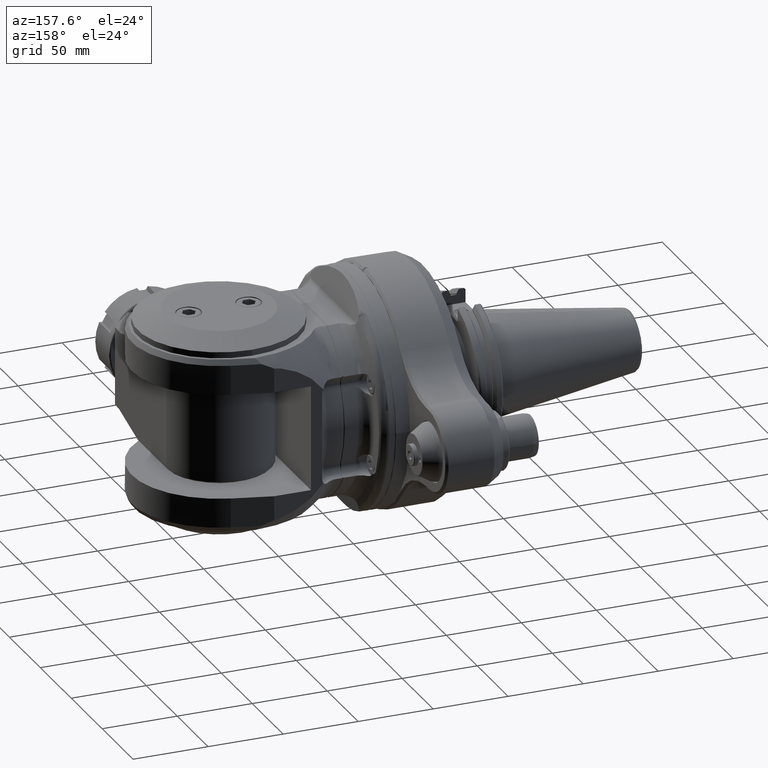
[diagram: clean part render]
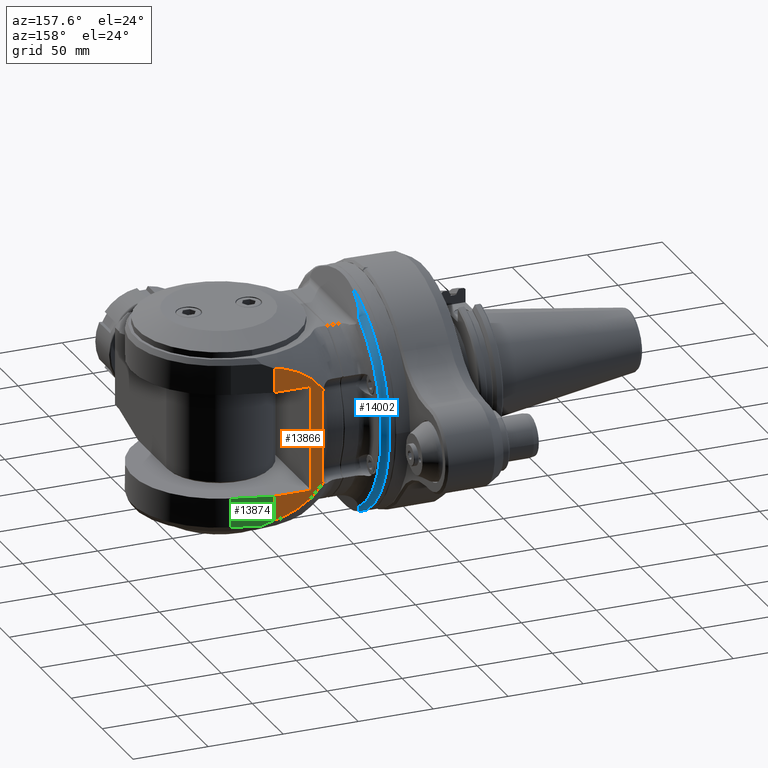
[diagram: same view with three faces highlighted in distinct colors, each labeled with its STEP entity id]
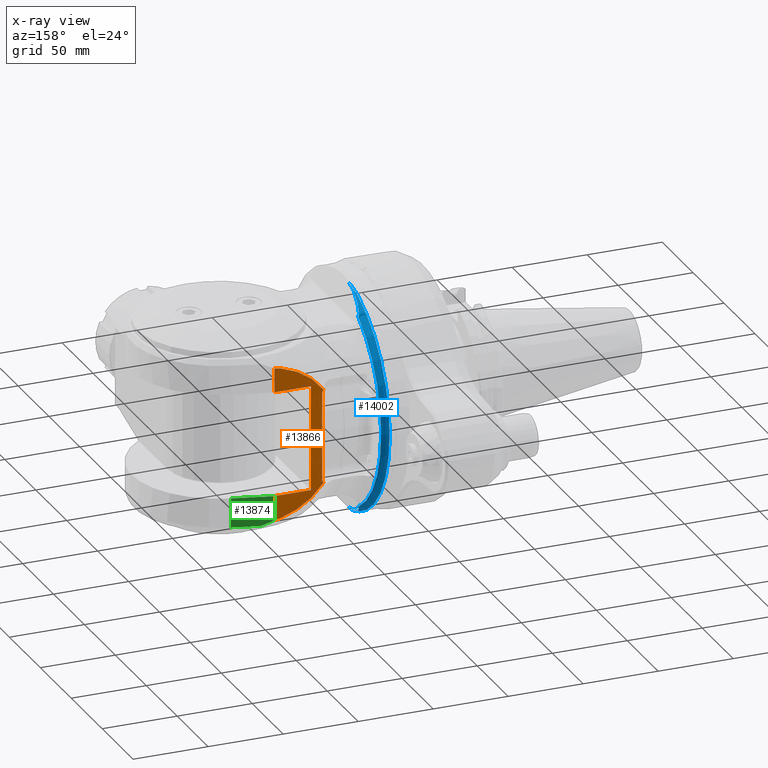
[diagram: x-ray of the same camera — body ghosted, the three highlighted faces saturated]
A machine part, auxiliary view with three faces highlighted in distinct colors.
The next image is the same camera in x-ray (body ghosted, the three faces saturated) — at least one of them is partly hidden behind the body in this view.
Their STEP definitions:

[orange] entity #13866 — the highlighted planar face has unit normal (-0, 1, 0).
#39=(
BOUNDED_CURVE()
B_SPLINE_CURVE(2,(#21549,#21550,#21551),.UNSPECIFIED.,.F.,.F.)
B_SPLINE_CURVE_WITH_KNOTS((3,3),(3.09000583298893,4.48026403852182),
 .UNSPECIFIED.)
CURVE()
GEOMETRIC_REPRESENTATION_ITEM()
RATIONAL_B_SPLINE_CURVE((1.01024396396153,1.00848071304012,1.0030571417366))
REPRESENTATION_ITEM('')
);
#40=(
BOUNDED_CURVE()
B_SPLINE_CURVE(2,(#21574,#21575,#21576),.UNSPECIFIED.,.F.,.F.)
B_SPLINE_CURVE_WITH_KNOTS((3,3),(1.64990286988643,2.81895816475584),
 .UNSPECIFIED.)
CURVE()
GEOMETRIC_REPRESENTATION_ITEM()
RATIONAL_B_SPLINE_CURVE((1.00489119304732,1.00546583130772,1.00439914148235))
REPRESENTATION_ITEM('')
);
#41=(
BOUNDED_CURVE()
B_SPLINE_CURVE(2,(#21580,#21581,#21582),.UNSPECIFIED.,.F.,.F.)
B_SPLINE_CURVE_WITH_KNOTS((3,3),(0.491702736314333,1.58354367920842),
 .UNSPECIFIED.)
CURVE()
GEOMETRIC_REPRESENTATION_ITEM()
RATIONAL_B_SPLINE_CURVE((1.00089229311394,1.00173294473739,1.00190730204875))
REPRESENTATION_ITEM('')
);
#42=(
BOUNDED_CURVE()
B_SPLINE_CURVE(2,(#21588,#21589,#21590),.UNSPECIFIED.,.F.,.F.)
B_SPLINE_CURVE_WITH_KNOTS((3,3),(1.13165271382278,1.54314168648289),
 .UNSPECIFIED.)
CURVE()
GEOMETRIC_REPRESENTATION_ITEM()
RATIONAL_B_SPLINE_CURVE((1.00030080361853,1.00033763730454,1.00036148614669))
REPRESENTATION_ITEM('')
);
#43=(
BOUNDED_CURVE()
B_SPLINE_CURVE(2,(#21600,#21601,#21602),.UNSPECIFIED.,.F.,.F.)
B_SPLINE_CURVE_WITH_KNOTS((3,3),(-1.54314818098456,-1.13165917102349),
 .UNSPECIFIED.)
CURVE()
GEOMETRIC_REPRESENTATION_ITEM()
RATIONAL_B_SPLINE_CURVE((1.00036148763546,1.00033763889358,1.00030080530782))
REPRESENTATION_ITEM('')
);
#44=(
BOUNDED_CURVE()
B_SPLINE_CURVE(2,(#21604,#21605,#21606),.UNSPECIFIED.,.F.,.F.)
B_SPLINE_CURVE_WITH_KNOTS((3,3),(-1.58354367920748,-0.491702736315006),
 .UNSPECIFIED.)
CURVE()
GEOMETRIC_REPRESENTATION_ITEM()
RATIONAL_B_SPLINE_CURVE((1.00190730204873,1.00173294473737,1.00089229311393))
REPRESENTATION_ITEM('')
);
#45=(
BOUNDED_CURVE()
B_SPLINE_CURVE(2,(#21608,#21609,#21610),.UNSPECIFIED.,.F.,.F.)
B_SPLINE_CURVE_WITH_KNOTS((3,3),(-2.81895816475613,-1.64990286988555),
 .UNSPECIFIED.)
CURVE()
GEOMETRIC_REPRESENTATION_ITEM()
RATIONAL_B_SPLINE_CURVE((1.00439914148234,1.00546583130771,1.0048911930473))
REPRESENTATION_ITEM('')
);
#46=(
BOUNDED_CURVE()
B_SPLINE_CURVE(2,(#21612,#21613,#21614),.UNSPECIFIED.,.F.,.F.)
B_SPLINE_CURVE_WITH_KNOTS((3,3),(-4.48026403848997,-3.09000583296642),
 .UNSPECIFIED.)
CURVE()
GEOMETRIC_REPRESENTATION_ITEM()
RATIONAL_B_SPLINE_CURVE((1.0030571417379,1.00848071304122,1.01024396396244))
REPRESENTATION_ITEM('')
);
#408=PLANE('',#14827);
#1307=FACE_OUTER_BOUND('',#2164,.T.);
#2164=EDGE_LOOP('',(#9566,#9567,#9568,#9569,#9570,#9571,#9572,#9573,#9574,
#9575,#9576,#9577,#9578,#9579,#9580,#9581,#9582));
#3124=LINE('',#21594,#4106);
#3125=LINE('',#21596,#4107);
#3126=LINE('',#21598,#4108);
#3127=LINE('',#21618,#4109);
#3128=LINE('',#21620,#4110);
#3129=LINE('',#21623,#4111);
#3130=LINE('',#21624,#4112);
#4106=VECTOR('',#16574,70.);
#4107=VECTOR('',#16575,24.47559082222);
#4108=VECTOR('',#16576,16.09619086282);
#4109=VECTOR('',#16579,28.5);
#4110=VECTOR('',#16580,28.5);
#4111=VECTOR('',#16583,16.0961908628);
#4112=VECTOR('',#16584,24.47559082222);
#5109=CIRCLE('',#14828,6.);
#5110=CIRCLE('',#14829,6.);
#5897=VERTEX_POINT('',#21546);
#5898=VERTEX_POINT('',#21548);
#5899=VERTEX_POINT('',#21572);
#5900=VERTEX_POINT('',#21578);
#5902=VERTEX_POINT('',#21586);
#5903=VERTEX_POINT('',#21592);
#5904=VERTEX_POINT('',#21593);
#5905=VERTEX_POINT('',#21595);
#5906=VERTEX_POINT('',#21597);
#5907=VERTEX_POINT('',#21599);
#5908=VERTEX_POINT('',#21603);
#5909=VERTEX_POINT('',#21607);
#5910=VERTEX_POINT('',#21611);
#5911=VERTEX_POINT('',#21615);
#5912=VERTEX_POINT('',#21617);
#5913=VERTEX_POINT('',#21619);
#5914=VERTEX_POINT('',#21622);
#7330=EDGE_CURVE('',#5897,#5898,#39,.T.);
#7333=EDGE_CURVE('',#5899,#5897,#40,.T.);
#7335=EDGE_CURVE('',#5900,#5899,#41,.T.);
#7338=EDGE_CURVE('',#5902,#5900,#42,.T.);
#7339=EDGE_CURVE('',#5903,#5904,#3124,.T.);
#7340=EDGE_CURVE('',#5903,#5905,#3125,.T.);
#7341=EDGE_CURVE('',#5905,#5906,#3126,.T.);
#7342=EDGE_CURVE('',#5907,#5906,#43,.T.);
#7343=EDGE_CURVE('',#5908,#5907,#44,.T.);
#7344=EDGE_CURVE('',#5909,#5908,#45,.T.);
#7345=EDGE_CURVE('',#5910,#5909,#46,.T.);
#7346=EDGE_CURVE('',#5910,#5911,#5109,.T.);
#7347=EDGE_CURVE('',#5911,#5912,#3127,.T.);
#7348=EDGE_CURVE('',#5912,#5913,#3128,.T.);
#7349=EDGE_CURVE('',#5913,#5898,#5110,.T.);
#7350=EDGE_CURVE('',#5902,#5914,#3129,.T.);
#7351=EDGE_CURVE('',#5914,#5904,#3130,.T.);
#9566=ORIENTED_EDGE('',*,*,#7339,.F.);
#9567=ORIENTED_EDGE('',*,*,#7340,.T.);
#9568=ORIENTED_EDGE('',*,*,#7341,.T.);
#9569=ORIENTED_EDGE('',*,*,#7342,.F.);
#9570=ORIENTED_EDGE('',*,*,#7343,.F.);
#9571=ORIENTED_EDGE('',*,*,#7344,.F.);
#9572=ORIENTED_EDGE('',*,*,#7345,.F.);
#9573=ORIENTED_EDGE('',*,*,#7346,.T.);
#9574=ORIENTED_EDGE('',*,*,#7347,.T.);
#9575=ORIENTED_EDGE('',*,*,#7348,.T.);
#9576=ORIENTED_EDGE('',*,*,#7349,.T.);
#9577=ORIENTED_EDGE('',*,*,#7330,.F.);
#9578=ORIENTED_EDGE('',*,*,#7333,.F.);
#9579=ORIENTED_EDGE('',*,*,#7335,.F.);
#9580=ORIENTED_EDGE('',*,*,#7338,.F.);
#9581=ORIENTED_EDGE('',*,*,#7350,.T.);
#9582=ORIENTED_EDGE('',*,*,#7351,.T.);
#13866=ADVANCED_FACE('',(#1307),#408,.T.);
#14827=AXIS2_PLACEMENT_3D('',#21591,#16572,#16573);
#14828=AXIS2_PLACEMENT_3D('',#21616,#16577,#16578);
#14829=AXIS2_PLACEMENT_3D('',#21621,#16581,#16582);
#16572=DIRECTION('center_axis',(0.,0.,-1.));
#16573=DIRECTION('ref_axis',(-1.,0.,0.));
#16574=DIRECTION('',(1.,0.,0.));
#16575=DIRECTION('',(0.,-1.,0.));
#16576=DIRECTION('',(-1.,-1.572061576115E-12,4.114177294318E-13));
#16577=DIRECTION('center_axis',(0.,0.,1.));
#16578=DIRECTION('ref_axis',(-0.495651403660401,-0.868521551862402,0.));
#16579=DIRECTION('',(1.,0.,0.));
#16580=DIRECTION('',(1.,0.,0.));
#16581=DIRECTION('center_axis',(0.,0.,1.));
#16582=DIRECTION('ref_axis',(0.,-1.,0.));
#16583=DIRECTION('',(-1.,1.852924806107E-13,-4.45849685329E-14));
#16584=DIRECTION('',(0.,1.,0.));
#21546=CARTESIAN_POINT('',(40.23136214448,35.65374444704,-63.));
#21548=CARTESIAN_POINT('',(31.47390842196,43.78887068883,-63.));
#21549=CARTESIAN_POINT('Ctrl Pts',(40.2313621444497,35.6537444470694,-63.));
#21550=CARTESIAN_POINT('Ctrl Pts',(35.7221696137501,40.2180841021291,-63.));
#21551=CARTESIAN_POINT('Ctrl Pts',(31.4739084219595,43.7888706888291,-63.));
#21572=CARTESIAN_POINT('',(46.411879183329,26.0375730676394,-62.9999999182682));
#21574=CARTESIAN_POINT('Ctrl Pts',(46.4118791373444,26.0375730390164,-63.));
#21575=CARTESIAN_POINT('Ctrl Pts',(43.2509284499252,31.1886336243595,-63.));
#21576=CARTESIAN_POINT('Ctrl Pts',(40.23136214448,35.6537444470401,-63.));
#21578=CARTESIAN_POINT('',(50.5129934127813,15.2088837061737,-62.99999998973));
#21580=CARTESIAN_POINT('Ctrl Pts',(50.5129934104433,15.2088837051708,-63.));
#21581=CARTESIAN_POINT('Ctrl Pts',(48.430194765292,20.8523217398271,-63.));
#21582=CARTESIAN_POINT('Ctrl Pts',(46.4118790480749,26.0375730147125,-63.));
#21586=CARTESIAN_POINT('',(51.0961908628,11.02440917777,-63.));
#21588=CARTESIAN_POINT('Ctrl Pts',(51.0961908627975,11.0244091777697,-63.));
#21589=CARTESIAN_POINT('Ctrl Pts',(50.8039326150433,13.1286550741746,-63.));
#21590=CARTESIAN_POINT('Ctrl Pts',(50.5129933905563,15.2088837030091,-63.));
#21591=CARTESIAN_POINT('Origin',(58.,60.,-63.));
#21592=CARTESIAN_POINT('',(-35.,35.5,-63.));
#21593=CARTESIAN_POINT('',(35.,35.5,-63.));
#21594=CARTESIAN_POINT('',(-35.,35.5,-63.));
#21595=CARTESIAN_POINT('',(-35.,11.02440917778,-63.));
#21596=CARTESIAN_POINT('',(-35.,35.5,-63.));
#21597=CARTESIAN_POINT('',(-51.09619086282,11.02440917775,-62.99999999999));
#21598=CARTESIAN_POINT('',(-35.,11.02440917778,-63.));
#21599=CARTESIAN_POINT('',(-50.5129934127796,15.2088837061781,-62.9999999897305));
#21600=CARTESIAN_POINT('Ctrl Pts',(-50.5129933905558,15.2088837030137,-63.));
#21601=CARTESIAN_POINT('Ctrl Pts',(-50.8039326150448,13.1286550741656,-63.));
#21602=CARTESIAN_POINT('Ctrl Pts',(-51.0961908628007,11.0244091777473,-63.));
#21603=CARTESIAN_POINT('',(-46.4118791833364,26.0375730676297,-62.9999999182663));
#21604=CARTESIAN_POINT('Ctrl Pts',(-46.4118790480791,26.0375730147016,-63.));
#21605=CARTESIAN_POINT('Ctrl Pts',(-48.4301947652934,20.8523217398232,-63.));
#21606=CARTESIAN_POINT('Ctrl Pts',(-50.5129934104416,15.2088837051752,-63.));
#21607=CARTESIAN_POINT('',(-40.23136214448,35.65374444704,-63.));
#21608=CARTESIAN_POINT('Ctrl Pts',(-40.23136214448,35.65374444704,-63.));
#21609=CARTESIAN_POINT('Ctrl Pts',(-43.2509284499282,31.188633624355,-63.));
#21610=CARTESIAN_POINT('Ctrl Pts',(-46.4118791373507,26.0375730390061,-63.));
#21611=CARTESIAN_POINT('',(-31.47390842196,43.78887068883,-63.));
#21612=CARTESIAN_POINT('Ctrl Pts',(-31.4739084219595,43.7888706888291,-63.));
#21613=CARTESIAN_POINT('Ctrl Pts',(-35.7221696137501,40.2180841021291,-63.));
#21614=CARTESIAN_POINT('Ctrl Pts',(-40.2313621444497,35.6537444470693,-63.));
#21615=CARTESIAN_POINT('',(-28.5,43.,-63.));
#21616=CARTESIAN_POINT('Origin',(-28.5,49.,-63.));
#21617=CARTESIAN_POINT('',(-9.237055564881E-14,43.,-63.));
#21618=CARTESIAN_POINT('',(-28.5,43.,-63.));
#21619=CARTESIAN_POINT('',(28.5,43.,-63.));
#21620=CARTESIAN_POINT('',(-1.938746086415E-14,43.,-63.));
#21621=CARTESIAN_POINT('Origin',(28.5,49.,-63.));
#21622=CARTESIAN_POINT('',(35.,11.02440917778,-63.));
#21623=CARTESIAN_POINT('',(51.0961908628,11.02440917777,-63.));
#21624=CARTESIAN_POINT('',(35.,11.02440917778,-63.));

[blue] entity #14002 — the highlighted toroidal blend (fillet) surface has major radius 72 mm and minor (blend) radius 5 mm.
#369=TOROIDAL_SURFACE('',#15089,72.,5.);
#1151=B_SPLINE_CURVE_WITH_KNOTS('',3,(#22957,#22958,#22959,#22960,#22961,
#22962,#22963,#22964,#22965,#22966,#22967,#22968,#22969,#22970),
 .UNSPECIFIED.,.F.,.F.,(4,2,2,2,2,2,4),(-6.64039982266853,-6.18228683481121,
-4.78062563342998,-4.40544668024499,-4.03026772705999,-3.75265487217664,
-3.66110414503273),.UNSPECIFIED.);
#1153=B_SPLINE_CURVE_WITH_KNOTS('',3,(#23119,#23120,#23121,#23122,#23123,
#23124,#23125,#23126,#23127,#23128,#23129,#23130,#23131,#23132),
 .UNSPECIFIED.,.F.,.F.,(4,2,2,2,2,2,4),(-6.64039982264594,-6.18228683480736,
-4.78062563342678,-4.40544668024209,-4.0302677270574,-3.75265487217429,
-3.66110414502927),.UNSPECIFIED.);
#1443=FACE_OUTER_BOUND('',#2322,.T.);
#2322=EDGE_LOOP('',(#10228,#10229,#10230,#10231));
#5147=CIRCLE('',#14897,74.1130913087);
#5189=CIRCLE('',#15020,77.);
#5989=VERTEX_POINT('',#22381);
#5990=VERTEX_POINT('',#22383);
#6077=VERTEX_POINT('',#22955);
#6080=VERTEX_POINT('',#22992);
#7459=EDGE_CURVE('',#5990,#5989,#5147,.T.);
#7611=EDGE_CURVE('',#6077,#5989,#1151,.T.);
#7617=EDGE_CURVE('',#6077,#6080,#5189,.T.);
#7673=EDGE_CURVE('',#6080,#5990,#1153,.T.);
#10228=ORIENTED_EDGE('',*,*,#7611,.F.);
#10229=ORIENTED_EDGE('',*,*,#7617,.T.);
#10230=ORIENTED_EDGE('',*,*,#7673,.T.);
#10231=ORIENTED_EDGE('',*,*,#7459,.T.);
#14002=ADVANCED_FACE('',(#1443),#369,.T.);
#14897=AXIS2_PLACEMENT_3D('',#22384,#16753,#16754);
#15020=AXIS2_PLACEMENT_3D('',#22994,#17057,#17058);
#15089=AXIS2_PLACEMENT_3D('',#23118,#17215,#17216);
#16753=DIRECTION('center_axis',(0.,1.,0.));
#16754=DIRECTION('ref_axis',(0.,0.,-1.));
#17057=DIRECTION('center_axis',(0.,-1.,0.));
#17058=DIRECTION('ref_axis',(-0.991790282454034,0.,-0.127875078219904));
#17215=DIRECTION('center_axis',(0.,1.,0.));
#17216=DIRECTION('ref_axis',(-1.26844124801169E-12,0.,-1.));
#22381=CARTESIAN_POINT('',(-63.91755084936,77.65381236892,-37.51395735955));
#22383=CARTESIAN_POINT('',(63.91755084936,77.65381236892,-37.51395735955));
#22384=CARTESIAN_POINT('Origin',(0.,77.65381236885,0.));
#22955=CARTESIAN_POINT('',(-76.36785174898,82.18535130404,-9.846381022811));
#22957=CARTESIAN_POINT('Ctrl Pts',(-76.3678517489763,82.1853513040468,-9.84638102281085));
#22958=CARTESIAN_POINT('Ctrl Pts',(-76.1574821026051,82.1087830145746,-11.4779934832016));
#22959=CARTESIAN_POINT('Ctrl Pts',(-75.8913528515761,82.0119198887325,-13.1143923999079));
#22960=CARTESIAN_POINT('Ctrl Pts',(-74.5792110085562,81.534339314738,-19.6977104192957));
#22961=CARTESIAN_POINT('Ctrl Pts',(-73.048142593535,80.9770759850451,-24.5209159775169));
#22962=CARTESIAN_POINT('Ctrl Pts',(-70.5016737953597,80.0502371400216,-29.7874169372029));
#22963=CARTESIAN_POINT('Ctrl Pts',(-69.864168289825,79.8182041118261,-30.9832081267079));
#22964=CARTESIAN_POINT('Ctrl Pts',(-68.4510773855668,79.3038810843637,-33.2722571373251));
#22965=CARTESIAN_POINT('Ctrl Pts',(-67.6763739964816,79.0219121103515,-34.3661314394346));
#22966=CARTESIAN_POINT('Ctrl Pts',(-66.2877613196144,78.5164984290471,-35.9633693702132));
#22967=CARTESIAN_POINT('Ctrl Pts',(-65.5292673954691,78.2404292177864,-36.7259800918611));
#22968=CARTESIAN_POINT('Ctrl Pts',(-64.5179908085687,77.8723546415443,-37.3227065292325));
#22969=CARTESIAN_POINT('Ctrl Pts',(-64.2120838378471,77.7610136097471,-37.4663034462966));
#22970=CARTESIAN_POINT('Ctrl Pts',(-63.917550849358,77.6538123689276,-37.5139573595545));
#22992=CARTESIAN_POINT('',(76.36785174895,82.18535130403,-9.846381023004));
#22994=CARTESIAN_POINT('Origin',(0.,82.18535130404,0.));
#23118=CARTESIAN_POINT('Origin',(0.,82.18535130404,0.));
#23119=CARTESIAN_POINT('Ctrl Pts',(76.3678517489514,82.1853513040334,-9.84638102300434));
#23120=CARTESIAN_POINT('Ctrl Pts',(76.1574821025843,82.1087830145626,-11.4779934833287));
#23121=CARTESIAN_POINT('Ctrl Pts',(75.8913528515639,82.0119198887237,-13.1143923999675));
#23122=CARTESIAN_POINT('Ctrl Pts',(74.5792110085578,81.5343393147342,-19.6977104192868));
#23123=CARTESIAN_POINT('Ctrl Pts',(73.0481425935377,80.9770759850417,-24.5209159775059));
#23124=CARTESIAN_POINT('Ctrl Pts',(70.5016737953641,80.0502371400188,-29.7874169371893));
#23125=CARTESIAN_POINT('Ctrl Pts',(69.86416828983,79.8182041118235,-30.9832081266933));
#23126=CARTESIAN_POINT('Ctrl Pts',(68.4510773855731,79.3038810843616,-33.2722571373088));
#23127=CARTESIAN_POINT('Ctrl Pts',(67.6763739964886,79.0219121103497,-34.3661314394174));
#23128=CARTESIAN_POINT('Ctrl Pts',(66.2877613196227,78.5164984290458,-35.9633693701948));
#23129=CARTESIAN_POINT('Ctrl Pts',(65.5292673954782,78.2404292177853,-36.7259800918421));
#23130=CARTESIAN_POINT('Ctrl Pts',(64.5179908085753,77.8723546415424,-37.3227065292148));
#23131=CARTESIAN_POINT('Ctrl Pts',(64.2120838378492,77.7610136097435,-37.4663034462804));
#23132=CARTESIAN_POINT('Ctrl Pts',(63.9175508493568,77.6538123689228,-37.5139573595362));

[green] entity #13874 — the highlighted planar face has unit normal (-0.2588, -0.9659, -0).
#414=PLANE('',#14846);
#808=ELLIPSE('',#14847,439.769862777795,107.582639507099);
#1315=FACE_OUTER_BOUND('',#2174,.T.);
#2174=EDGE_LOOP('',(#9624,#9625,#9626,#9627,#9628));
#3126=LINE('',#21598,#4108);
#3135=LINE('',#21643,#4117);
#3146=LINE('',#21701,#4128);
#3147=LINE('',#21704,#4129);
#4108=VECTOR('',#16576,16.09619086282);
#4117=VECTOR('',#16601,26.9543613858507);
#4128=VECTOR('',#16632,19.53589838486);
#4129=VECTOR('',#16635,19.0291882973205);
#5905=VERTEX_POINT('',#21595);
#5906=VERTEX_POINT('',#21597);
#5922=VERTEX_POINT('',#21641);
#5936=VERTEX_POINT('',#21699);
#5937=VERTEX_POINT('',#21703);
#7341=EDGE_CURVE('',#5905,#5906,#3126,.T.);
#7360=EDGE_CURVE('',#5922,#5905,#3135,.T.);
#7381=EDGE_CURVE('',#5936,#5922,#3146,.T.);
#7382=EDGE_CURVE('',#5936,#5937,#3147,.T.);
#7383=EDGE_CURVE('',#5937,#5906,#808,.T.);
#9624=ORIENTED_EDGE('',*,*,#7382,.T.);
#9625=ORIENTED_EDGE('',*,*,#7383,.T.);
#9626=ORIENTED_EDGE('',*,*,#7341,.F.);
#9627=ORIENTED_EDGE('',*,*,#7360,.F.);
#9628=ORIENTED_EDGE('',*,*,#7381,.F.);
#13874=ADVANCED_FACE('',(#1315),#414,.F.);
#14846=AXIS2_PLACEMENT_3D('',#21702,#16633,#16634);
#14847=AXIS2_PLACEMENT_3D('',#21705,#16636,#16637);
#16576=DIRECTION('',(-1.,-1.572061576115E-12,4.114177294318E-13));
#16601=DIRECTION('',(0.,0.965925826289076,-0.258819045102493));
#16632=DIRECTION('',(1.,-9.165525223569E-14,3.091546206363E-14));
#16633=DIRECTION('center_axis',(0.,0.258819045102493,0.965925826289076));
#16634=DIRECTION('ref_axis',(0.,0.965925826289076,-0.258819045102493));
#16635=DIRECTION('',(0.,0.965925826289076,-0.258819045102493));
#16636=DIRECTION('center_axis',(0.,-0.258819045102493,-0.965925826289076));
#16637=DIRECTION('ref_axis',(-2.01964367019142E-16,-0.965925826289076,0.258819045102493));
#21595=CARTESIAN_POINT('',(-35.,11.02440917778,-63.));
#21597=CARTESIAN_POINT('',(-51.09619086282,11.02440917775,-62.99999999999));
#21598=CARTESIAN_POINT('',(-35.,11.02440917778,-63.));
#21641=CARTESIAN_POINT('',(-35.,-15.01150461595,-56.02369792477));
#21643=CARTESIAN_POINT('',(-35.,-15.01150461595,-56.02369792477));
#21699=CARTESIAN_POINT('',(-54.53589838486,-15.01150461595,-56.02369792477));
#21701=CARTESIAN_POINT('',(-54.53589838486,-15.01150461595,-56.02369792477));
#21702=CARTESIAN_POINT('Origin',(-88.95817547125,-15.01150461595,-56.02369792477));
#21703=CARTESIAN_POINT('',(-54.53589838486,3.36927981375,-60.94881426895));
#21704=CARTESIAN_POINT('',(-54.53589838486,-15.01150461595,-56.02369792477));
#21705=CARTESIAN_POINT('Origin',(1.77635683940025E-14,-362.7922721989,37.1638778921469));